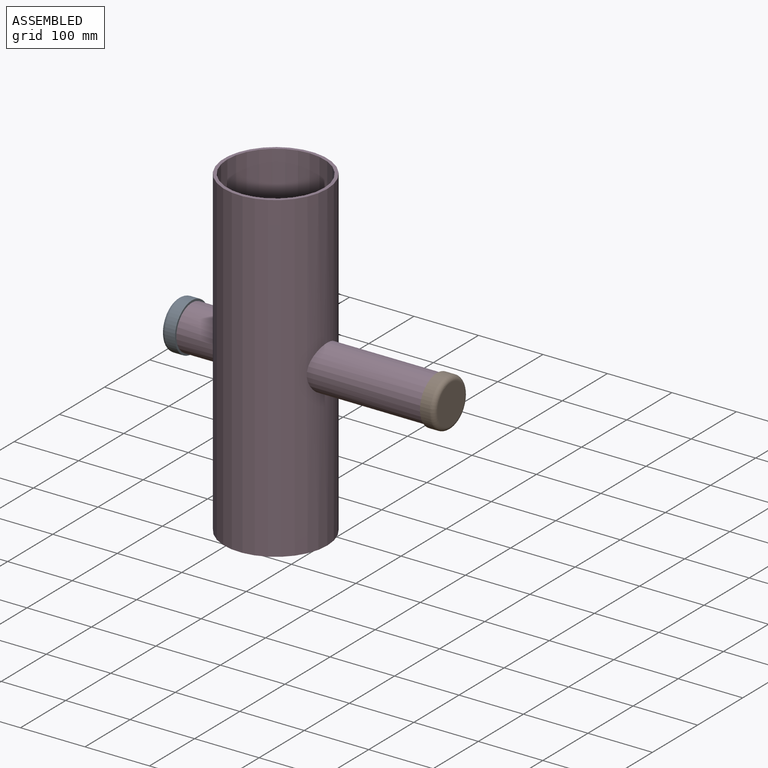
[diagram: assembled view]
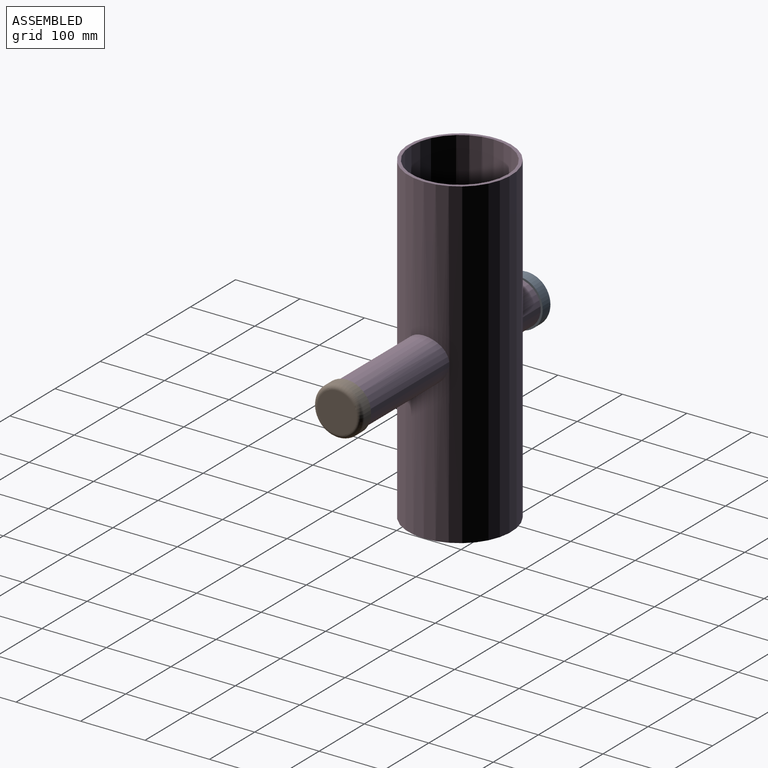
[diagram: assembled view, second angle]
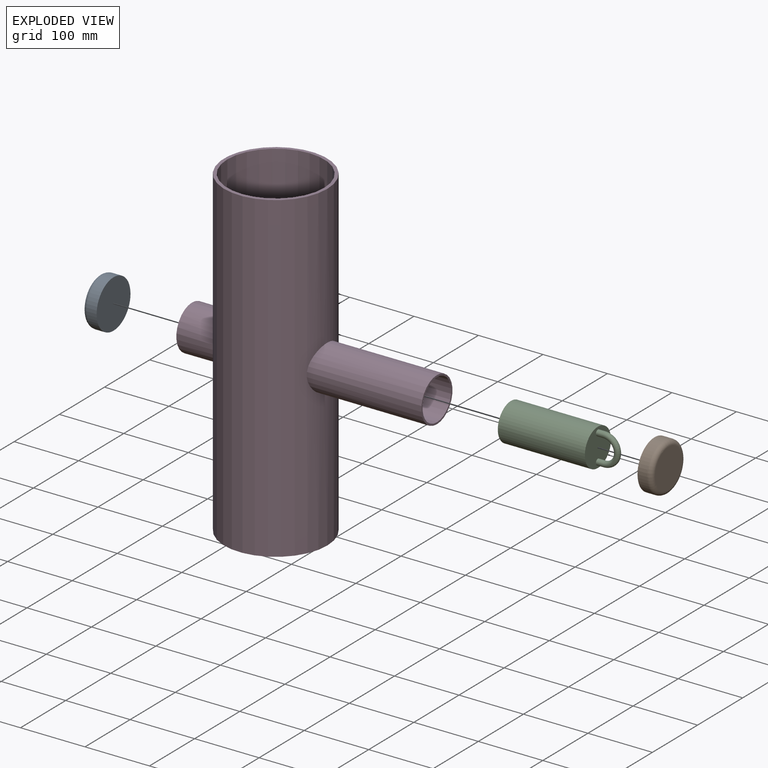
[diagram: exploded view]
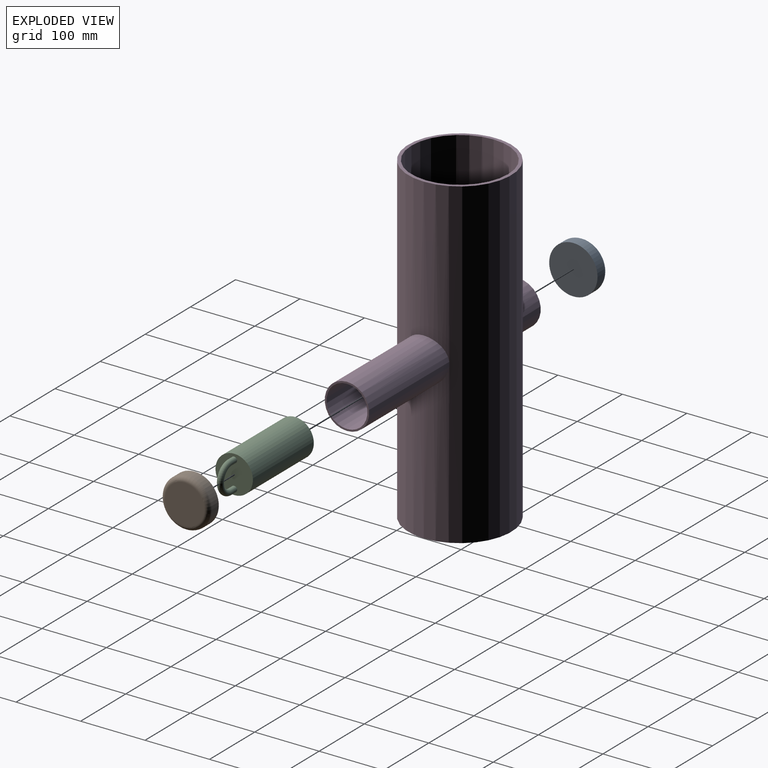
[diagram: exploded view, second angle]
ASSEMBLY  parts=4 mates=2
PART A: 4 faces, bbox 22x81.2x81.2 mm
  f0: cylinder r=37.5mm len=75mm, axis (-1,0,0), area 3534.3mm2, adj f2,f3
  f1: plane 61x61mm, normal (1,0,0), area 2922.5mm2, adj f3
  f2: plane 75x75mm, normal (-1,0,0), area 4417.9mm2, adj f0
  f3: torus R=30.5mm, axis (1,0,0), area 2415mm2, adj f0,f1
PART B: same geometry as A
PART C: 6 faces, bbox 172.1x58x58 mm
  f0: cylinder r=29mm len=135mm, axis (1,0,0), area 24598.7mm2, adj f1,f4
  f1: plane 58x58mm, normal (-1,0,0), area 2642.1mm2, adj f0
  f2: cylinder r=4.5mm len=10mm, axis (1,0,0), area 282.7mm2, adj f4,f5
  f3: cylinder r=4.5mm len=10mm, axis (1,0,0), area 282.7mm2, adj f4,f5
  f4: plane 58x58mm, normal (1,0,0), area 2514.8mm2, adj f0,f2,f3
  f5: torus R=20.5mm, axis (0,1,0), area 1820.9mm2, adj f2,f3
PART D: 18 faces, bbox 380x160x500 mm
  f0: cylinder r=31.75mm len=380mm, axis (-1,0,0), area 57266mm2, adj f2,f3,f4,f5,f6,f7,f8,f9
  f1: cylinder r=34.5mm len=150mm, axis (-1,0,0), area 13345.2mm2, adj f2,f3,f4,f5,f6,f7,f8,f9
  f2: cylinder r=30mm len=60mm, axis (0,0,1), area 382.9mm2, adj f0,f1,f3,f5
  f3: plane 75x6.64mm, normal (0,-1,0), area 498mm2, adj f0,f1,f2,f4
  f4: cylinder r=30mm len=60mm, axis (0,0,1), area 382.9mm2, adj f0,f1,f3,f5
  f5: plane 75x6.64mm, normal (0,1,0), area 498.2mm2, adj f0,f1,f2,f4
  f6: plane 75x6.64mm, normal (0,1,0), area 498.2mm2, adj f0,f1,f7,f9
  f7: cylinder r=30mm len=60mm, axis (0,0,1), area 383.1mm2, adj f0,f1,f6,f8
  f8: plane 75x6.64mm, normal (0,-1,0), area 498mm2, adj f0,f1,f7,f9
  f9: cylinder r=30mm len=60mm, axis (0,0,1), area 383.1mm2, adj f0,f1,f6,f8
  f10: plane 160x160mm, normal (0,0,-1), area 2434.7mm2, adj f12,f13
  f11: plane 160x160mm, normal (0,0,1), area 2434.7mm2, adj f12,f13
  f12: cylinder r=80mm len=500mm, axis (0,0,-1), area 243659.3mm2, adj f10,f11,f14,f16
  f13: cylinder r=75mm len=500mm, axis (0,0,-1), area 227927mm2, adj f1,f10,f11
  f14: cylinder r=34.5mm len=69mm, axis (-1,0,0), area 11677.3mm2, adj f12,f17
  f15: plane 69x69mm, normal (1,0,0), area 572.4mm2, adj f0,f16
  f16: cylinder r=34.5mm len=177.82mm, axis (-1,0,0), area 37687.6mm2, adj f12,f15
  f17: plane 69x69mm, normal (-1,0,0), area 572.4mm2, adj f0,f14
PLACE A rot(axis=(0,1,0),180deg) t=(-492.38,-345.58,-83.81)mm
PLACE B t=(-112.38,-345.58,-83.81)mm
PLACE C t=(-163.02,-345.58,-83.81)mm
PLACE D t=(-362.38,-345.58,-83.81)mm
MATE fastened A.f0 <-> D.f0  axis (1,0,0) through (-492.38,-345.58,-83.81)mm
MATE slider C.f0 <-> D.f0  axis (1,0,0) through (-240.52,-345.58,-83.81)mm
